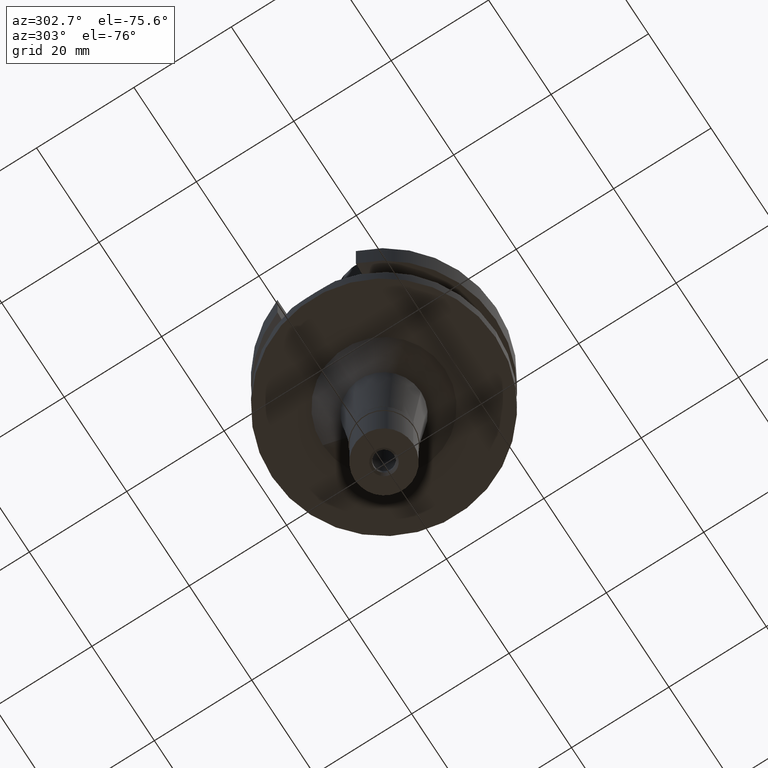
[diagram: clean part render]
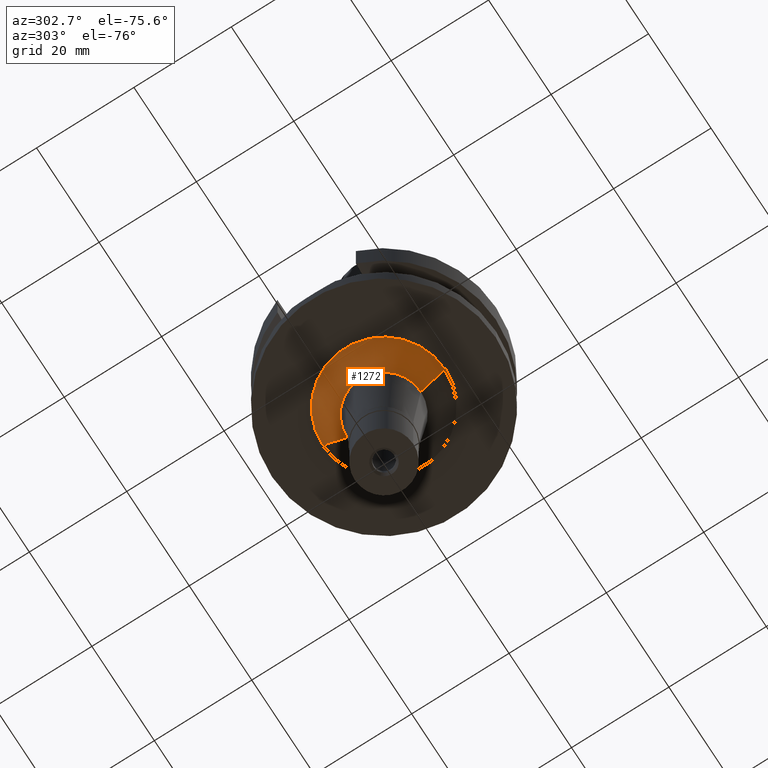
[diagram: same view with one face highlighted and labeled with its STEP entity id]
A machine part, auxiliary view. The second image highlights one B-rep face of the part: STEP entity #1272.
In plain terms, the highlighted conical surface has half-angle 45 deg.
Its self-contained STEP definition (entity closure, byte-faithful):
#163 = EDGE_LOOP ( 'NONE', ( #1805, #921, #406, #1462 ) ) ;
#226 = VERTEX_POINT ( 'NONE', #2759 ) ;
#260 = VERTEX_POINT ( 'NONE', #629 ) ;
#340 = CONICAL_SURFACE ( 'NONE', #1449, 10.05729821075999908, 0.7853981633972997312 ) ;
#406 = ORIENTED_EDGE ( 'NONE', *, *, #1287, .T. ) ;
#484 = LINE ( 'NONE', #2545, #1924 ) ;
#525 = CARTESIAN_POINT ( 'NONE',  ( 0.0000000000000000000, -7.557298210760999169, -27.00000000000000000 ) ) ;
#606 = DIRECTION ( 'NONE',  ( 0.0000000000000000000, 0.7071067811864980568, -0.7071067811865969777 ) ) ;
#629 = CARTESIAN_POINT ( 'NONE',  ( 0.0000000000000000000, 12.55729821075999908, -22.00000000000000000 ) ) ;
#712 = DIRECTION ( 'NONE',  ( 0.0000000000000000000, 0.0000000000000000000, 1.000000000000000000 ) ) ;
#722 = CIRCLE ( 'NONE', #1167, 12.55729821075999908 ) ;
#811 = VECTOR ( 'NONE', #606, 1000.000000000000000 ) ;
#892 = CARTESIAN_POINT ( 'NONE',  ( 0.0000000000000000000, 0.0000000000000000000, -27.00000000000000000 ) ) ;
#921 = ORIENTED_EDGE ( 'NONE', *, *, #1685, .F. ) ;
#937 = CARTESIAN_POINT ( 'NONE',  ( 0.0000000000000000000, 0.0000000000000000000, -24.50000000000000000 ) ) ;
#1015 = CIRCLE ( 'NONE', #1406, 7.557298210760999169 ) ;
#1098 = EDGE_CURVE ( 'NONE', #1955, #1647, #1015, .T. ) ;
#1167 = AXIS2_PLACEMENT_3D ( 'NONE', #2551, #1897, #1658 ) ;
#1272 = ADVANCED_FACE ( 'NONE', ( #2083 ), #340, .T. ) ;
#1287 = EDGE_CURVE ( 'NONE', #226, #260, #722, .T. ) ;
#1406 = AXIS2_PLACEMENT_3D ( 'NONE', #892, #2509, #2913 ) ;
#1449 = AXIS2_PLACEMENT_3D ( 'NONE', #937, #712, #1631 ) ;
#1462 = ORIENTED_EDGE ( 'NONE', *, *, #1838, .T. ) ;
#1569 = LINE ( 'NONE', #2488, #811 ) ;
#1631 = DIRECTION ( 'NONE',  ( 0.0000000000000000000, 1.000000000000000000, 0.0000000000000000000 ) ) ;
#1647 = VERTEX_POINT ( 'NONE', #1796 ) ;
#1658 = DIRECTION ( 'NONE',  ( 0.0000000000000000000, -1.000000000000000000, 0.0000000000000000000 ) ) ;
#1685 = EDGE_CURVE ( 'NONE', #226, #1955, #1569, .T. ) ;
#1796 = CARTESIAN_POINT ( 'NONE',  ( 0.0000000000000000000, 7.557298210760999169, -27.00000000000000000 ) ) ;
#1805 = ORIENTED_EDGE ( 'NONE', *, *, #1098, .F. ) ;
#1838 = EDGE_CURVE ( 'NONE', #260, #1647, #484, .T. ) ;
#1897 = DIRECTION ( 'NONE',  ( 0.0000000000000000000, 0.0000000000000000000, -1.000000000000000000 ) ) ;
#1924 = VECTOR ( 'NONE', #2077, 1000.000000000000000 ) ;
#1955 = VERTEX_POINT ( 'NONE', #525 ) ;
#2077 = DIRECTION ( 'NONE',  ( 0.0000000000000000000, -0.7071067811864980568, -0.7071067811865969777 ) ) ;
#2083 = FACE_OUTER_BOUND ( 'NONE', #163, .T. ) ;
#2488 = CARTESIAN_POINT ( 'NONE',  ( 0.0000000000000000000, -12.55729821075999908, -22.00000000000000000 ) ) ;
#2509 = DIRECTION ( 'NONE',  ( 0.0000000000000000000, 0.0000000000000000000, -1.000000000000000000 ) ) ;
#2545 = CARTESIAN_POINT ( 'NONE',  ( 0.0000000000000000000, 12.55729821075999908, -22.00000000000000000 ) ) ;
#2551 = CARTESIAN_POINT ( 'NONE',  ( 0.0000000000000000000, 0.0000000000000000000, -22.00000000000000000 ) ) ;
#2759 = CARTESIAN_POINT ( 'NONE',  ( 0.0000000000000000000, -12.55729821075999908, -22.00000000000000000 ) ) ;
#2913 = DIRECTION ( 'NONE',  ( 0.0000000000000000000, -1.000000000000000000, 0.0000000000000000000 ) ) ;